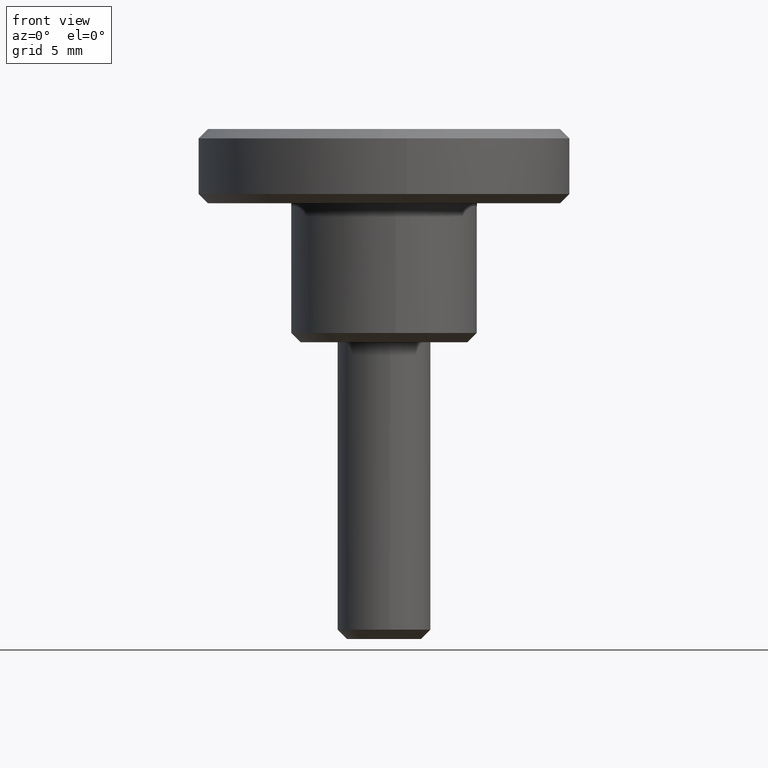
[diagram: clean part render]
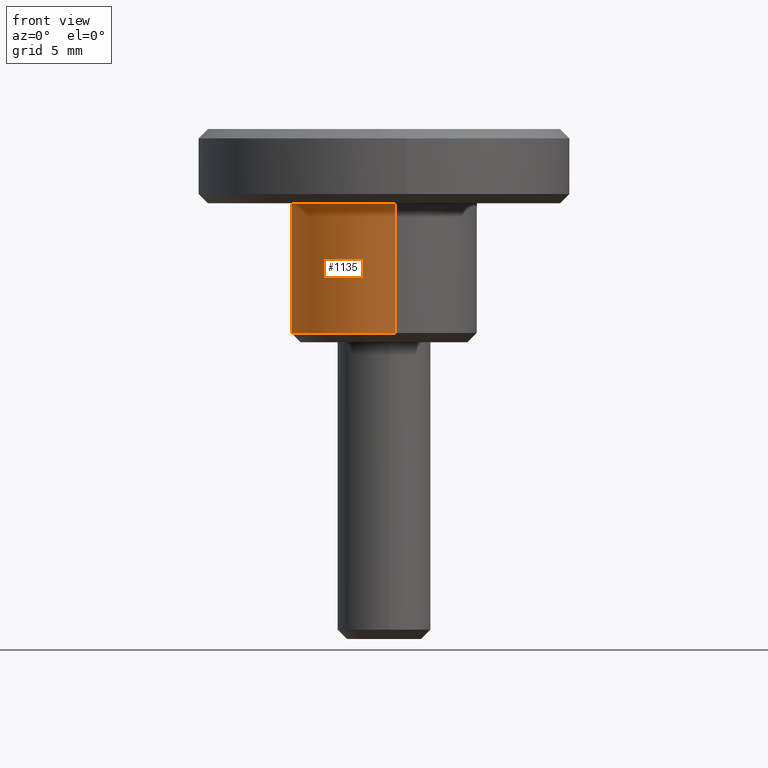
[diagram: same view with one face highlighted and labeled with its STEP entity id]
A machine part, front view. The second image highlights one B-rep face of the part: STEP entity #1135.
In plain terms, the highlighted face is a freeform B-spline surface patch.
Its self-contained STEP definition (entity closure, byte-faithful):
#699=CARTESIAN_POINT('',(-2.021077159957113,-4.573319047859597,0.500000000001518));
#700=VERTEX_POINT('',#699);
#701=CARTESIAN_POINT('',(0.620631770546321,-4.961332099882004,0.499999999999943));
#702=VERTEX_POINT('',#701);
#703=CARTESIAN_POINT('',(-2.021077159957113,-4.573319047859597,0.500000000001518));
#704=CARTESIAN_POINT('',(-1.055578086278946,-5.0,0.499999999999945));
#705=CARTESIAN_POINT('',(0.0,-5.0,0.499999999999945));
#706=CARTESIAN_POINT('',(0.311520469513361,-5.000000000000001,0.499999999999945));
#707=CARTESIAN_POINT('',(0.620631770546321,-4.961332099882004,0.499999999999943));
#715=(BOUNDED_CURVE()B_SPLINE_CURVE(2,(#703,#704,#705,#706,#707),.UNSPECIFIED.,.F.,.U.)B_SPLINE_CURVE_WITH_KNOTS((3,2,3),(0.181361578458765,0.250000000000000,0.271473648881002),.UNSPECIFIED.)CURVE()GEOMETRIC_REPRESENTATION_ITEM()RATIONAL_B_SPLINE_CURVE((0.883326595750651,0.919585087122053,1.0,0.974842055438294,0.954005973821274))REPRESENTATION_ITEM(''));
#716=EDGE_CURVE('',#700,#702,#715,.T.);
#759=CARTESIAN_POINT('',(-0.043631956922797,4.999809621608856,0.499999999999845));
#760=VERTEX_POINT('',#759);
#817=CARTESIAN_POINT('',(-5.0,0.0,0.499999999999945));
#818=VERTEX_POINT('',#817);
#819=CARTESIAN_POINT('',(-5.0,0.0,0.499999999999945));
#820=CARTESIAN_POINT('',(-5.0,-3.256850012931499,0.499999999999945));
#821=CARTESIAN_POINT('',(-2.021077159957113,-4.573319047859597,0.500000000001518));
#829=(BOUNDED_CURVE()B_SPLINE_CURVE(2,(#819,#820,#821),.UNSPECIFIED.,.F.,.U.)B_SPLINE_CURVE_WITH_KNOTS((3,3),(0.0,0.181361578458766),.UNSPECIFIED.)CURVE()GEOMETRIC_REPRESENTATION_ITEM()RATIONAL_B_SPLINE_CURVE((1.0,0.787521694064495,0.883326595750651))REPRESENTATION_ITEM(''));
#830=EDGE_CURVE('',#818,#700,#829,.T.);
#832=CARTESIAN_POINT('',(-0.043631956922797,4.999809621608856,0.499999999999845));
#833=CARTESIAN_POINT('',(-4.999999999999999,4.956556767337539,0.499999999999945));
#834=CARTESIAN_POINT('',(-5.0,0.0,0.499999999999945));
#842=(BOUNDED_CURVE()B_SPLINE_CURVE(2,(#832,#833,#834),.UNSPECIFIED.,.F.,.U.)B_SPLINE_CURVE_WITH_KNOTS((3,3),(0.751539868949412,1.0),.UNSPECIFIED.)CURVE()GEOMETRIC_REPRESENTATION_ITEM()RATIONAL_B_SPLINE_CURVE((0.996414086849745,0.708910849879124,1.0))REPRESENTATION_ITEM(''));
#843=EDGE_CURVE('',#760,#818,#842,.T.);
#1029=CARTESIAN_POINT('',(-0.043630701762436,4.999809632562005,7.500000000000000));
#1030=VERTEX_POINT('',#1029);
#1031=CARTESIAN_POINT('',(-0.043631956922797,4.999809621608856,0.499999999999845));
#1032=CARTESIAN_POINT('',(-0.043630701762436,4.999809632562005,7.500000000000000));
#1033=QUASI_UNIFORM_CURVE('',1,(#1031,#1032),.UNSPECIFIED.,.F.,.U.);
#1034=EDGE_CURVE('',#760,#1030,#1033,.T.);
#1053=CARTESIAN_POINT('',(0.620634759306516,-4.961331726009916,7.500000000000000));
#1054=VERTEX_POINT('',#1053);
#1068=CARTESIAN_POINT('',(0.620631770546321,-4.961332099882004,0.499999999999943));
#1069=CARTESIAN_POINT('',(0.620634759306516,-4.961331726009916,7.500000000000000));
#1070=QUASI_UNIFORM_CURVE('',1,(#1068,#1069),.UNSPECIFIED.,.F.,.U.);
#1071=EDGE_CURVE('',#702,#1054,#1070,.T.);
#1076=CARTESIAN_POINT('',(-0.043632677491869,4.999809615320855,0.324999999999944));
#1077=CARTESIAN_POINT('',(-5.043442292812725,4.956176937828985,0.324999999999944));
#1078=CARTESIAN_POINT('',(-4.999809615320855,-0.043632677491869,0.324999999999944));
#1079=CARTESIAN_POINT('',(-4.956176937828985,-5.043442292812725,0.324999999999944));
#1080=CARTESIAN_POINT('',(0.043632677491869,-4.999809615320855,0.324999999999944));
#1081=CARTESIAN_POINT('',(0.333250794790868,-4.997282156301378,0.324999999999943));
#1082=CARTESIAN_POINT('',(0.620640010399146,-4.961331069127693,0.324999999999943));
#1083=CARTESIAN_POINT('',(-0.043632677491869,4.999809615320855,7.679375000000003));
#1084=CARTESIAN_POINT('',(-5.043442292812725,4.956176937828985,7.679375000000004));
#1085=CARTESIAN_POINT('',(-4.999809615320855,-0.043632677491869,7.679375000000003));
#1086=CARTESIAN_POINT('',(-4.956176937828985,-5.043442292812725,7.679375000000004));
#1087=CARTESIAN_POINT('',(0.043632677491869,-4.999809615320855,7.679375000000003));
#1088=CARTESIAN_POINT('',(0.333250794790868,-4.997282156301378,7.679375000000003));
#1089=CARTESIAN_POINT('',(0.620640010399146,-4.961331069127693,7.679375000000002));
#1097=(BOUNDED_SURFACE()B_SPLINE_SURFACE(2,1,((#1076,#1083),(#1077,#1084),(#1078,#1085),(#1079,#1086),(#1080,#1087),(#1081,#1088),(#1082,#1089)),.UNSPECIFIED.,.F.,.F.,.U.)B_SPLINE_SURFACE_WITH_KNOTS((3,2,2,3),(2,2),(0.0,8.284271247461899,16.568542494923800,17.231284194720750),(0.0,7.354375000000061),.UNSPECIFIED.)GEOMETRIC_REPRESENTATION_ITEM()RATIONAL_B_SPLINE_SURFACE(((1.0,1.0),(0.707106781186548,0.707106781186548),(1.0,1.0),(0.707106781186548,0.707106781186548),(1.0,1.0),(0.976568542494924,0.976568542494924),(0.956886118190660,0.956886118190660)))REPRESENTATION_ITEM('')SURFACE());
#1098=ORIENTED_EDGE('',*,*,#830,.T.);
#1099=ORIENTED_EDGE('',*,*,#716,.T.);
#1100=ORIENTED_EDGE('',*,*,#1071,.T.);
#1101=CARTESIAN_POINT('',(-5.0,0.0,7.500000000000000));
#1102=VERTEX_POINT('',#1101);
#1103=CARTESIAN_POINT('',(0.620634759306516,-4.961331726009916,7.500000000000000));
#1104=CARTESIAN_POINT('',(0.311521981386364,-5.000000000000001,7.500000000000000));
#1105=CARTESIAN_POINT('',(0.0,-5.0,7.500000000000000));
#1106=CARTESIAN_POINT('',(-5.000000000000001,-5.000000000000001,7.500000000000000));
#1107=CARTESIAN_POINT('',(-5.0,0.0,7.500000000000000));
#1115=(BOUNDED_CURVE()B_SPLINE_CURVE(2,(#1103,#1104,#1105,#1106,#1107),.UNSPECIFIED.,.F.,.U.)B_SPLINE_CURVE_WITH_KNOTS((3,2,3),(0.728526249524831,0.750000000000000,1.0),.UNSPECIFIED.)CURVE()GEOMETRIC_REPRESENTATION_ITEM()RATIONAL_B_SPLINE_CURVE((0.954005776665837,0.974841936413323,1.0,0.707106781186548,1.0))REPRESENTATION_ITEM(''));
#1116=EDGE_CURVE('',#1054,#1102,#1115,.T.);
#1117=ORIENTED_EDGE('',*,*,#1116,.T.);
#1118=CARTESIAN_POINT('',(-5.0,0.0,7.500000000000000));
#1119=CARTESIAN_POINT('',(-5.0,4.956558011687165,7.500000000000000));
#1120=CARTESIAN_POINT('',(-0.043630701762436,4.999809632562005,7.500000000000000));
#1128=(BOUNDED_CURVE()B_SPLINE_CURVE(2,(#1118,#1119,#1120),.UNSPECIFIED.,.F.,.U.)B_SPLINE_CURVE_WITH_KNOTS((3,3),(0.0,0.248460175269763),.UNSPECIFIED.)CURVE()GEOMETRIC_REPRESENTATION_ITEM()RATIONAL_B_SPLINE_CURVE((1.0,0.708910798073138,0.996414189185345))REPRESENTATION_ITEM(''));
#1129=EDGE_CURVE('',#1102,#1030,#1128,.T.);
#1130=ORIENTED_EDGE('',*,*,#1129,.T.);
#1131=ORIENTED_EDGE('',*,*,#1034,.F.);
#1132=ORIENTED_EDGE('',*,*,#843,.T.);
#1133=EDGE_LOOP('',(#1098,#1099,#1100,#1117,#1130,#1131,#1132));
#1134=FACE_OUTER_BOUND('',#1133,.T.);
#1135=ADVANCED_FACE('',(#1134),#1097,.T.);